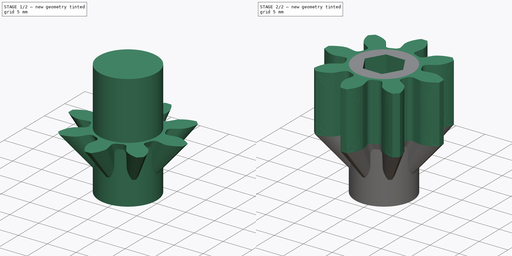
[diagram: build sequence overview — one tinted view per stage of 2, left to right]
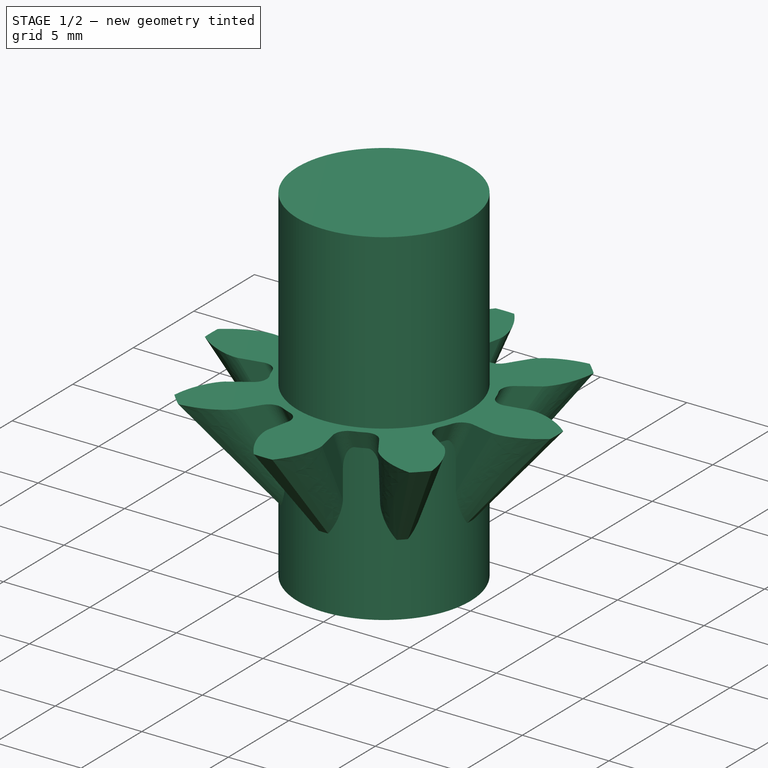
[diagram: stage 1 of 2 — iso view after this stage's code; geometry added in this stage tinted green]
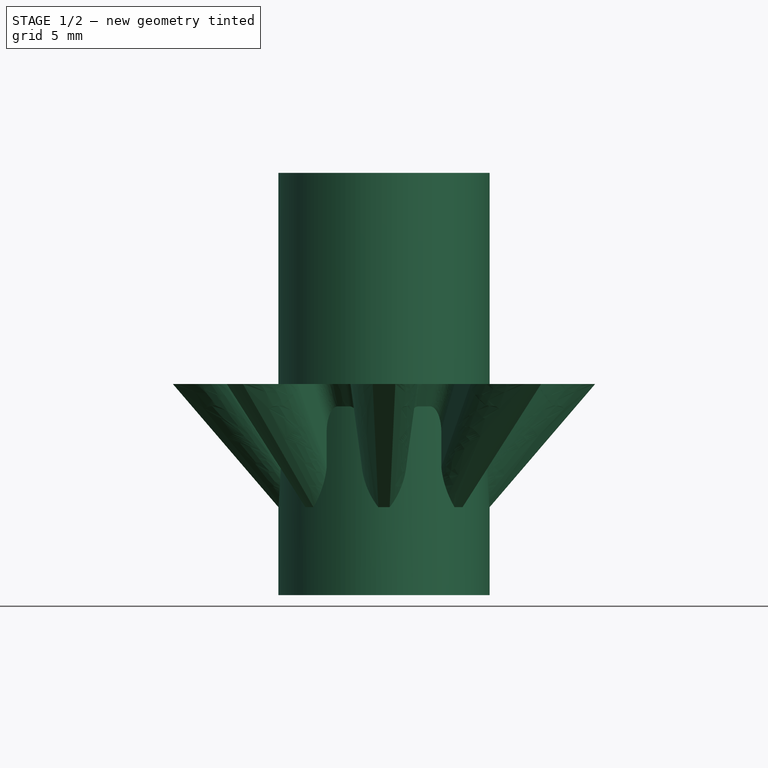
[diagram: stage 1 of 2 — front view after this stage's code; geometry added in this stage tinted green]
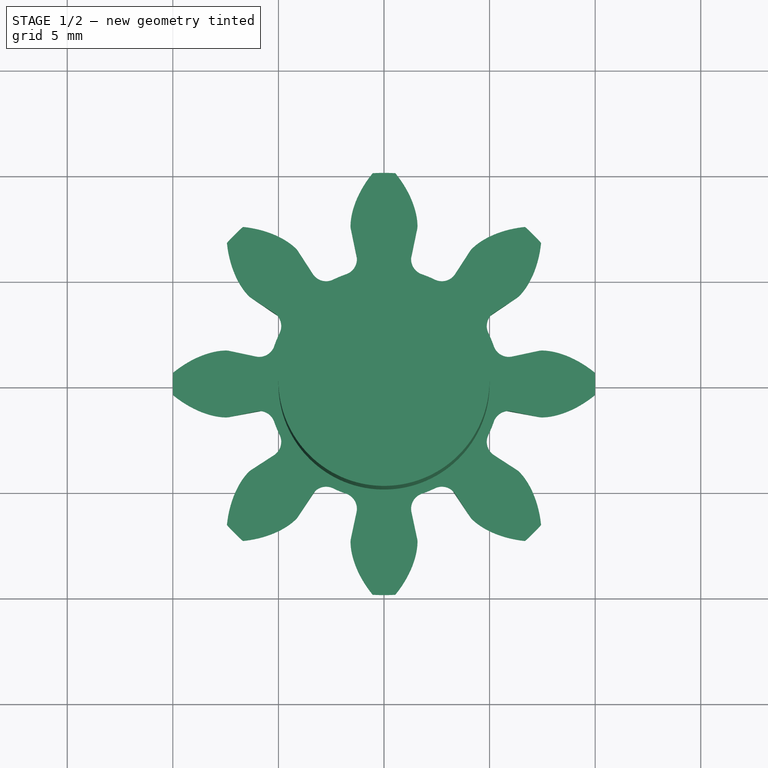
[diagram: stage 1 of 2 — top view after this stage's code; geometry added in this stage tinted green]
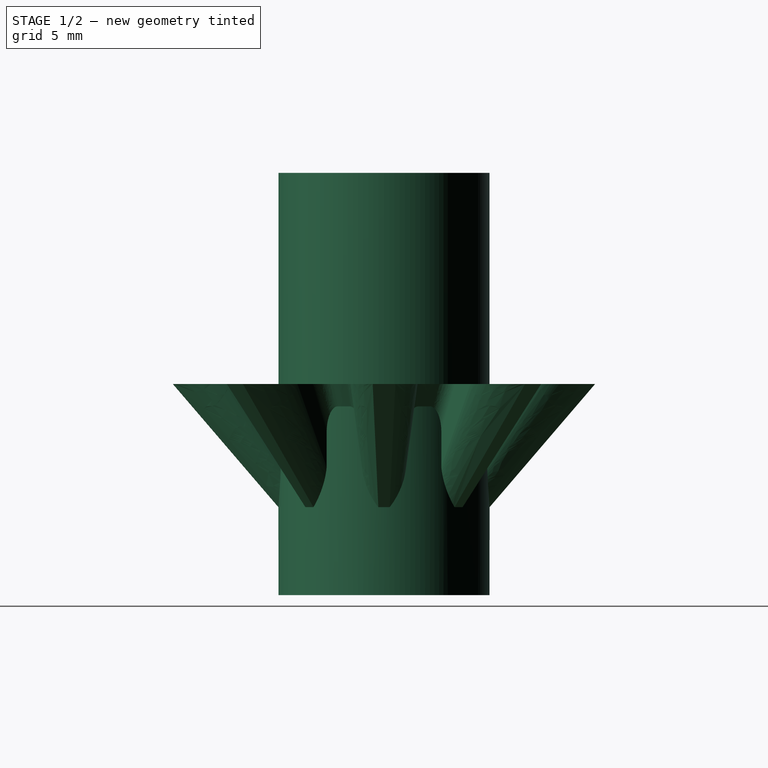
[diagram: stage 1 of 2 — right view after this stage's code; geometry added in this stage tinted green]
FCSTD DOCUMENT  (FreeCAD 0.18R14090 (Git))
Label: Knob_M3
License: All rights reserved
LicenseURL: http://en.wikipedia.org/wiki/All_rights_reserved
objects: Sketcher::SketchObject×2, PartDesign::Pad×2, PartDesign::Plane×2, Part::Part2DObjectPython×2, PartDesign::AdditiveLoft×1, PartDesign::Pocket×1, PartDesign::Body×1, App::Part×1
note: 15 computed .brp shape members not serialized (recipe doc carries the construction recipe); baked Part::Feature solids carry a one-line shape summary decoded from their .brp

FEATURE [Sketcher::SketchObject] Sketch  label="BaseSketch"
  MapMode = 5
  Support = -> [XY_Plane001]
  sketch-geometry (1):
    g0: Circle CenterX=0 CenterY=0 CenterZ=0 NormalX=0 NormalY=0 NormalZ=1 AngleXU=0 Radius=5
  constraints (1):
    c: Radius(g0) = 5
FEATURE [PartDesign::Pad] Pad  label="BasePad"
  Length = 20
  Length2 = 100
  Profile = -> Sketch
  Type = 0
FEATURE [PartDesign::Plane] DatumPlane  label="HandleNode1Plane"
  AttachmentOffset = pos=(0,0,3) rot=(0,0,1;0rad)
  MapMode = 5
  Placement = pos=(0,0,3) rot=(0,0,1;0rad)
  Support = -> [XY_Plane001]
FEATURE [PartDesign::Plane] DatumPlane001  label="HandleNode2Plane"
  AttachmentOffset = pos=(0,0,10) rot=(0,0,1;0rad)
  MapMode = 5
  Placement = pos=(0,0,10) rot=(0,0,1;0rad)
  Support = -> [XY_Plane001]
FEATURE [Part::Part2DObjectPython] InvoluteGear  label="Handle1Gear"  # Draft 2D object (typed FeaturePython)
  ExternalGear = true
  HighPrecision = false
  MapMode = 5
  Modules = 0.8
  NumberOfTeeth = 8
  Placement = pos=(0,0,3) rot=(0,0,1;0rad)
  PressureAngle = 20
  Support = -> [DatumPlane]
FEATURE [Part::Part2DObjectPython] InvoluteGear001  label="Handle2Gear"  # Draft 2D object (typed FeaturePython)
  ExternalGear = true
  HighPrecision = false
  MapMode = 5
  Modules = 2
  NumberOfTeeth = 8
  Placement = pos=(0,0,10) rot=(0,0,1;0rad)
  PressureAngle = 20
  Support = -> [DatumPlane001]
FEATURE [PartDesign::AdditiveLoft] AdditiveLoft  label="HandleLoft"
  BaseFeature = -> Pad
  Closed = false
  Profile = -> InvoluteGear
  Ruled = false
  Sections = -> [InvoluteGear001]
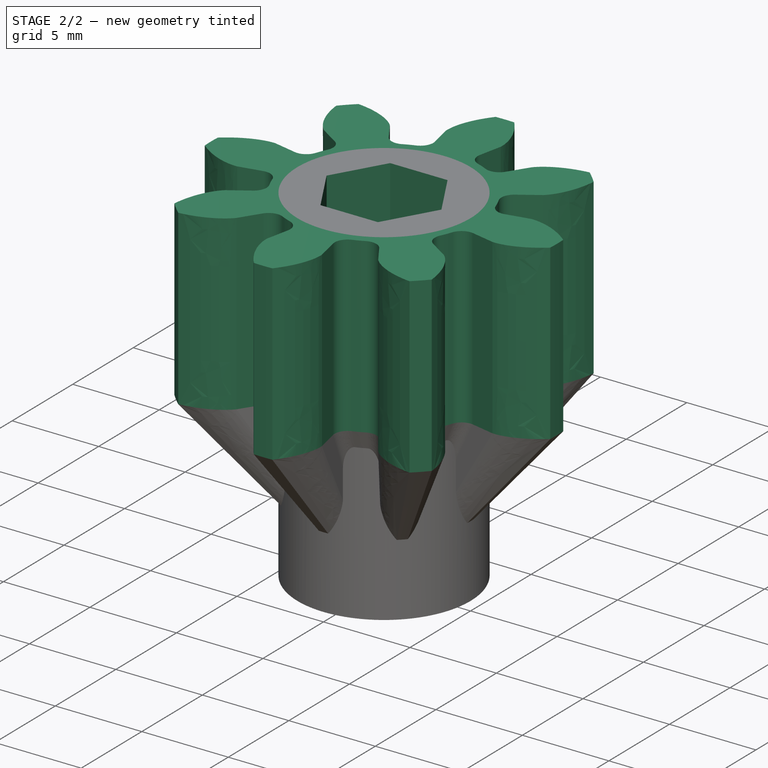
[diagram: stage 2 of 2 — iso view after this stage's code; geometry added in this stage tinted green]
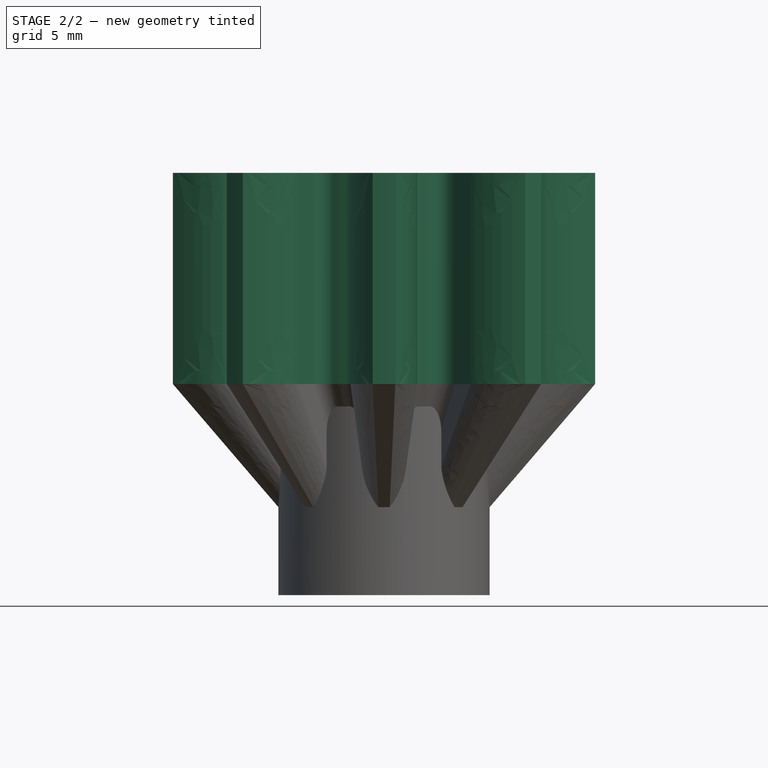
[diagram: stage 2 of 2 — front view after this stage's code; geometry added in this stage tinted green]
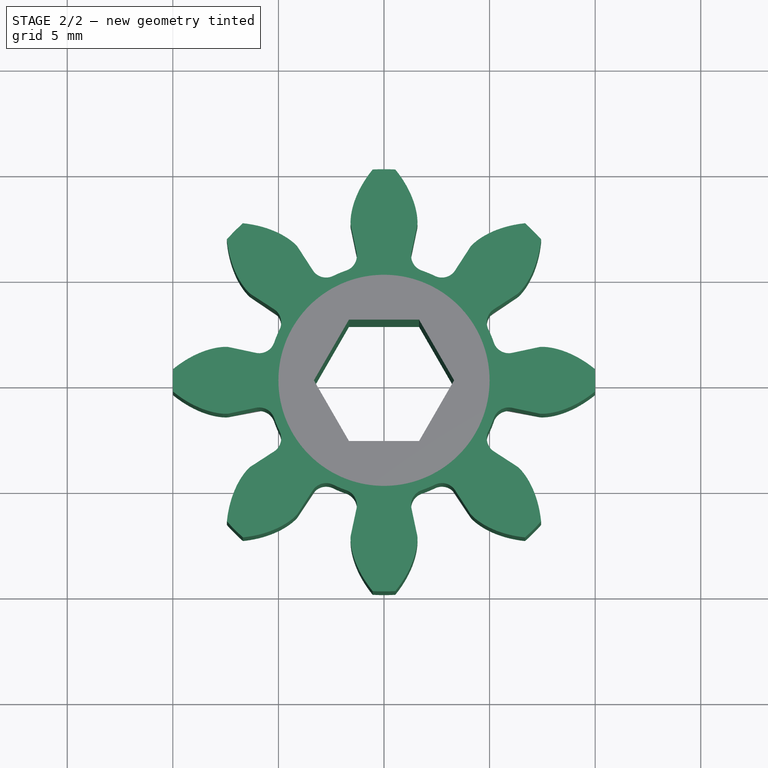
[diagram: stage 2 of 2 — top view after this stage's code; geometry added in this stage tinted green]
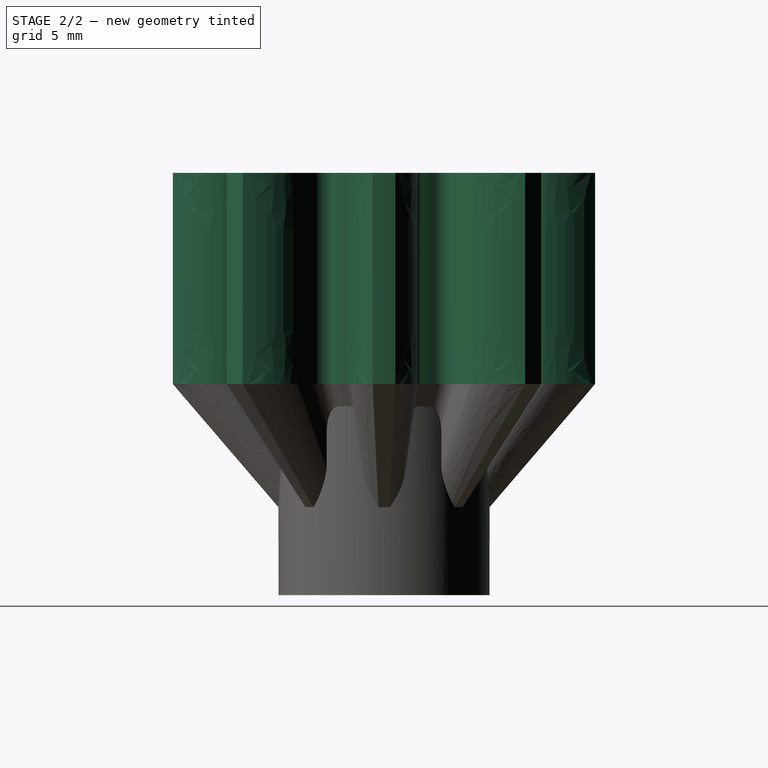
[diagram: stage 2 of 2 — right view after this stage's code; geometry added in this stage tinted green]
FEATURE [PartDesign::Pad] Pad001  label="HandlePad"
  BaseFeature = -> AdditiveLoft
  Length = 10
  Length2 = 100
  Profile = -> InvoluteGear001
  Type = 0
FEATURE [Sketcher::SketchObject] Sketch001  label="NutHoleSketch"
  MapMode = 5
  Support = -> [XY_Plane001]
  sketch-geometry (7):
    g0: LineSegment StartX=3.31976 StartY=0 StartZ=0 EndX=1.65988 EndY=2.875 EndZ=0
    g1: LineSegment StartX=1.65988 StartY=2.875 StartZ=0 EndX=-1.65988 EndY=2.875 EndZ=0
    g2: LineSegment StartX=-1.65988 StartY=2.875 StartZ=0 EndX=-3.31976 EndY=-4e-12 EndZ=0
    g3: LineSegment StartX=-3.31976 StartY=-4e-12 StartZ=0 EndX=-1.65988 EndY=-2.875 EndZ=0
    g4: LineSegment StartX=-1.65988 StartY=-2.875 StartZ=0 EndX=1.65988 EndY=-2.875 EndZ=0
    g5: LineSegment StartX=1.65988 StartY=-2.875 StartZ=0 EndX=3.31976 EndY=0 EndZ=0
    g6: Circle [constr] CenterX=0 CenterY=0 CenterZ=0 NormalX=0 NormalY=0 NormalZ=1 AngleXU=0 Radius=3.31976
  constraints (16):
    c: Coincident(g0,g1)
    c: Coincident(g1,g2)
    c: Coincident(g2,g3)
    c: Coincident(g3,g4)
    c: Coincident(g4,g5)
    c: Coincident(g5,g0)
    c: Equal(g0, g1-g5) x5
    c: PointOnObject(g0,g6)
    c: PointOnObject(g1,g6)
    c: PointOnObject(g2,g6)
    c: PointOnObject(g3,g6)
    c: PointOnObject(g4,g6)
    c: PointOnObject(g5,g6)
    c: Coincident(g6,g-1)
    c: PointOnObject(g5,g-1)
    c: Distance(g1,g3) = 5.75
FEATURE [PartDesign::Pocket] Pocket  label="NutHolePocket"
  BaseFeature = -> Pad001
  Length = 5
  Length2 = 100
  Profile = -> Sketch001
  Reversed = true
  Type = 1
FEATURE [PartDesign::Body] Body  label="KnobBody"
  Group = -> [Sketch,Pad,DatumPlane,DatumPlane001,InvoluteGear,InvoluteGear001,AdditiveLoft,Pad001,Sketch001,Pocket]
  Origin = -> Origin001
  Tip = -> Pocket
FEATURE [App::Part] Part  label="KnobPart"
  Group = -> [Body]
  License = CC BY 3.0
  LicenseURL = http://creativecommons.org/licenses/by/3.0/
  Origin = -> Origin
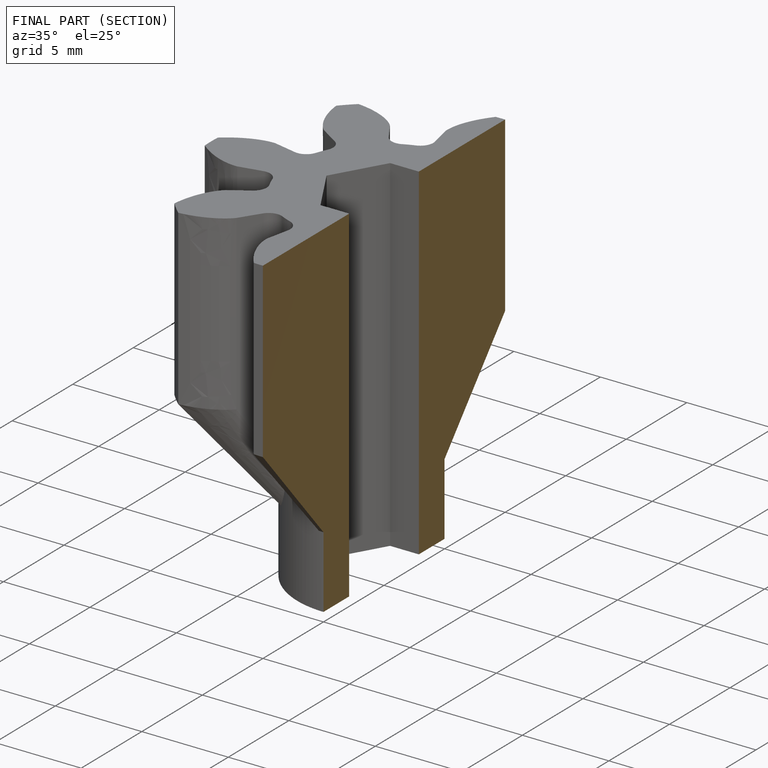
[diagram: finished part — half-section view (interior)]
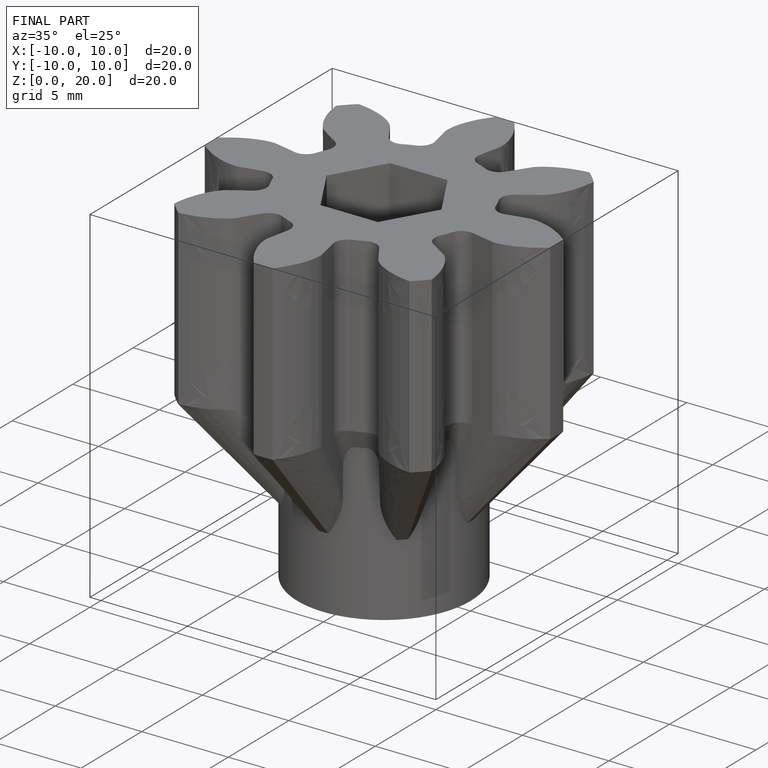
[diagram: finished part — iso view with bounding-box wireframe]
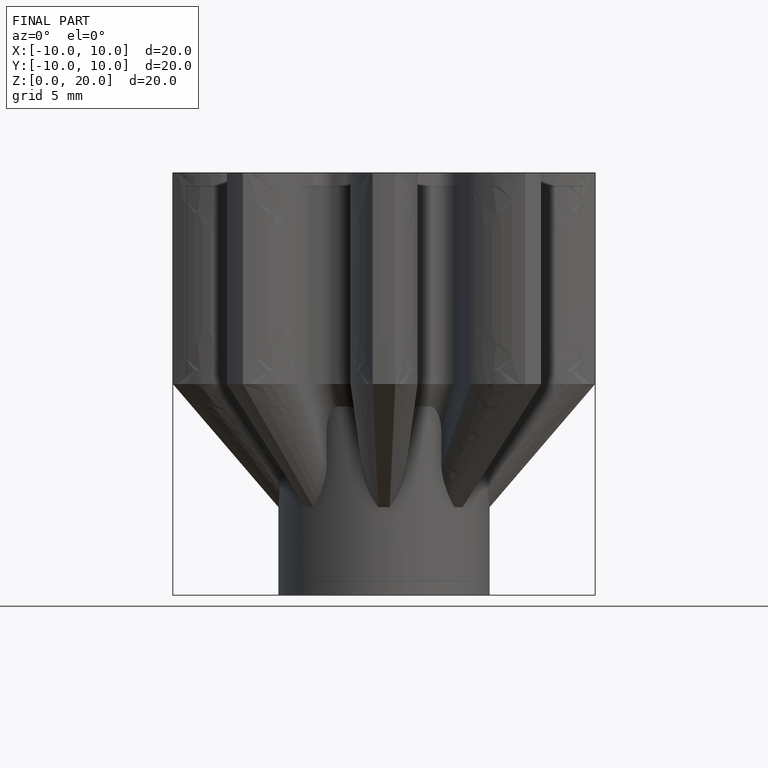
[diagram: finished part — front view with bounding-box wireframe]
